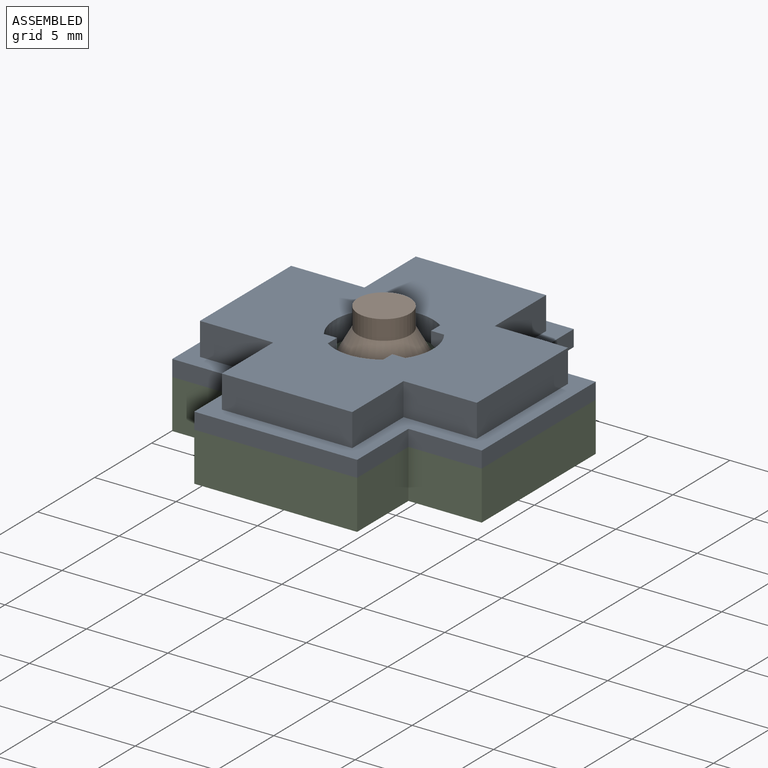
[diagram: assembled view]
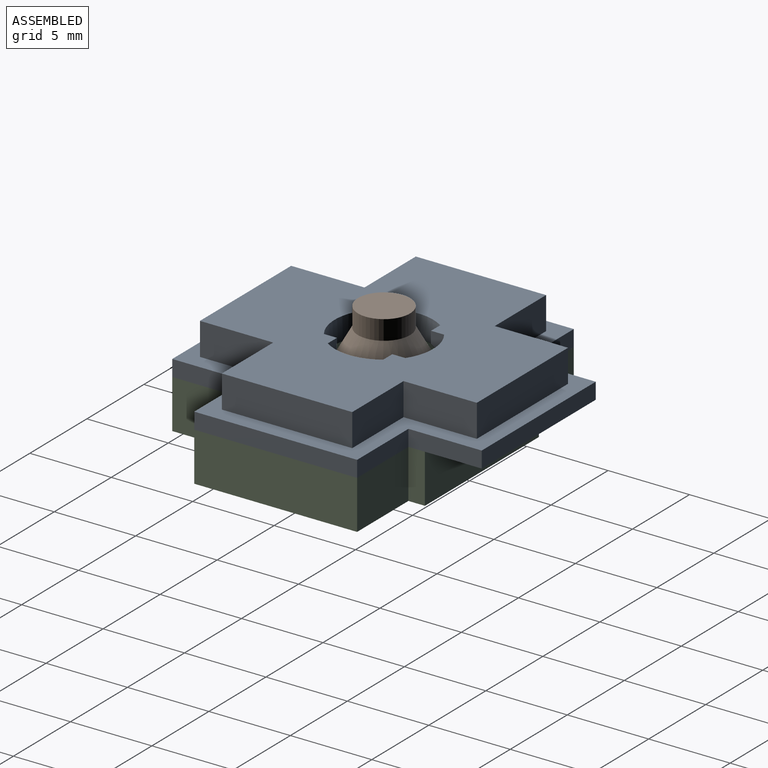
[diagram: assembled view, second angle]
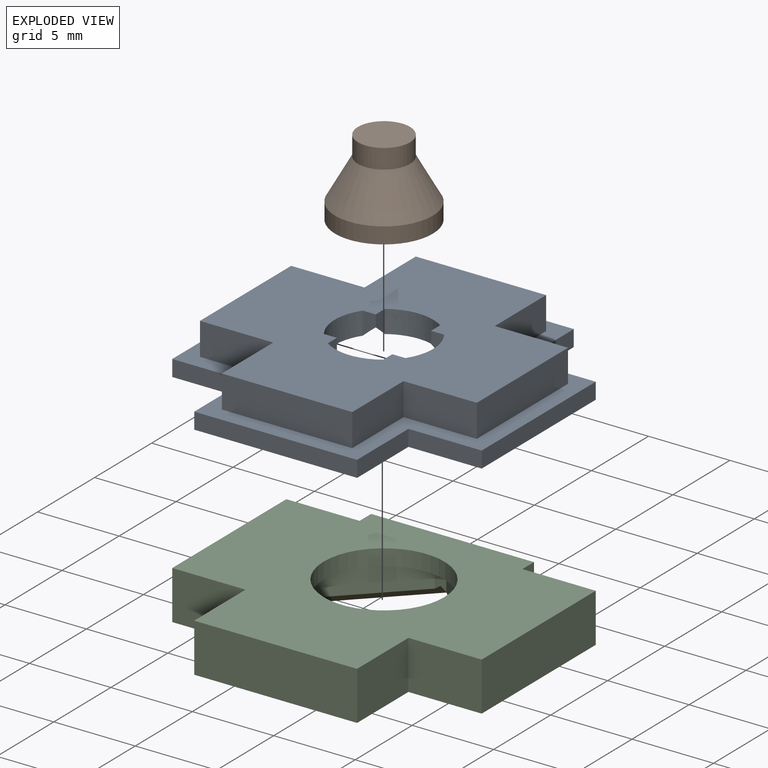
[diagram: exploded view]
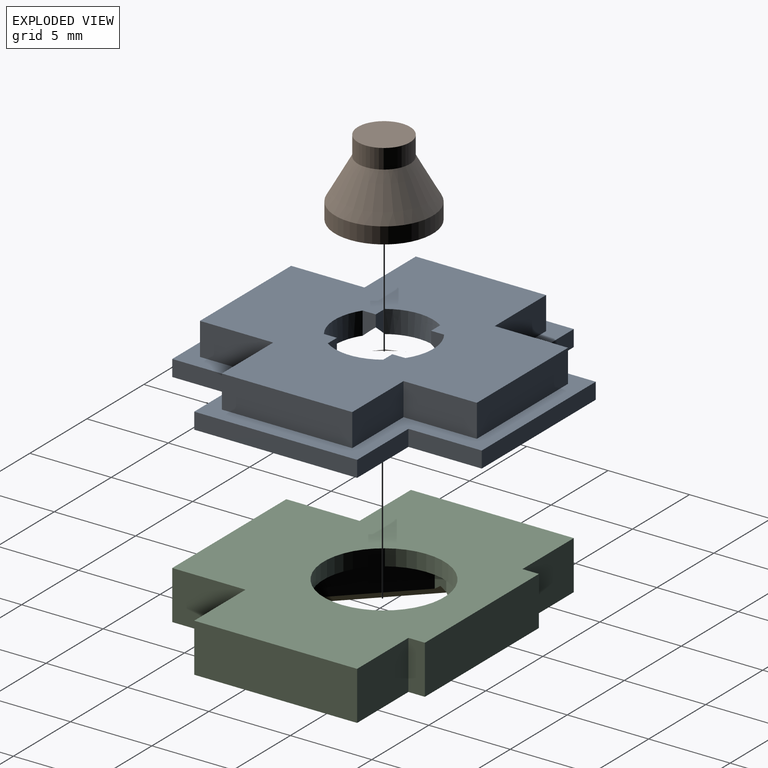
[diagram: exploded view, second angle]
ASSEMBLY  parts=3 mates=2
PART A: 40 faces, bbox 19.1x19.1x3.1 mm
  f0: plane 17x17mm, normal (0,0,1), area 180.7mm2, adj f2,f3,f4,f5,f6,f7,f8,f9
  f1: cone r=2.2mm half-angle=42.6deg, axis (0,0,-1), area 53.5mm2, adj f27,f28,f29,f30,f31,f32,f33,f34
  f2: plane 4.5x2mm, normal (0,-1,0), area 9mm2, adj f0,f3,f13,f26
  f3: plane 8x2mm, normal (1,0,0), area 16mm2, adj f0,f2,f4,f26
  f4: plane 4.5x2mm, normal (0,1,0), area 9mm2, adj f0,f3,f5,f26
  f5: plane 4.5x2mm, normal (1,0,0), area 9mm2, adj f0,f4,f6,f26
  f6: plane 8x2mm, normal (0,1,0), area 16mm2, adj f0,f5,f7,f26
  f7: plane 4.5x2mm, normal (-1,0,0), area 9mm2, adj f0,f6,f8,f26
  f8: plane 4.5x2mm, normal (0,1,0), area 9mm2, adj f0,f7,f9,f26
  f9: plane 8x2mm, normal (-1,0,0), area 16mm2, adj f0,f8,f10,f26
  f10: plane 4.5x2mm, normal (0,-1,0), area 9mm2, adj f0,f9,f11,f26
  f11: plane 4.5x2mm, normal (-1,0,0), area 9mm2, adj f0,f10,f12,f26
  f12: plane 8x2mm, normal (0,-1,0), area 16mm2, adj f0,f11,f13,f26
  f13: plane 4.5x2mm, normal (1,0,0), area 9mm2, adj f0,f2,f12,f26
  f14: plane 4.5x1mm, normal (0,-1,0), area 4.5mm2, adj f15,f25,f26,f27
  f15: plane 10x1mm, normal (1,0,0), area 10mm2, adj f14,f16,f26,f27
  f16: plane 4.5x1mm, normal (0,1,0), area 4.5mm2, adj f15,f17,f26,f27
  f17: plane 4.5x1mm, normal (1,0,0), area 4.5mm2, adj f16,f18,f26,f27
  f18: plane 10x1mm, normal (0,1,0), area 10mm2, adj f17,f19,f26,f27
  f19: plane 4.5x1mm, normal (-1,0,0), area 4.5mm2, adj f18,f20,f26,f27
  f20: plane 4.5x1mm, normal (0,1,0), area 4.5mm2, adj f19,f21,f26,f27
  f21: plane 10x1mm, normal (-1,0,0), area 10mm2, adj f20,f22,f26,f27
  f22: plane 4.5x1mm, normal (0,-1,0), area 4.5mm2, adj f21,f23,f26,f27
  f23: plane 4.5x1mm, normal (-1,0,0), area 4.5mm2, adj f22,f24,f26,f27
  f24: plane 10x1mm, normal (0,-1,0), area 10mm2, adj f23,f25,f26,f27
  f25: plane 4.5x1mm, normal (1,0,0), area 4.5mm2, adj f14,f24,f26,f27
  f26: plane 19x19mm, normal (0,0,1), area 72mm2, adj f2,f3,f4,f5,f6,f7,f8,f9
  f27: plane 19x19mm, normal (0,0,-1), area 216.4mm2, adj f1,f14,f15,f16,f17,f18,f19,f20
  f28: plane 1.46x0.87mm, normal (-1,0,0), area 0.8mm2, adj f0,f1,f29,f39
  f29: cylinder r=3mm len=3.4mm, axis (0,0,1), area 5mm2, adj f0,f1,f28,f30
  f30: plane 1.46x0.87mm, normal (1,0,0), area 0.8mm2, adj f0,f1,f29,f31
  f31: plane 1.46x0.87mm, normal (0,-1,0), area 0.8mm2, adj f0,f1,f30,f32
  f32: cylinder r=3mm len=3.4mm, axis (0,0,1), area 5mm2, adj f0,f1,f31,f33
  f33: plane 1.46x0.87mm, normal (0,1,0), area 0.8mm2, adj f0,f1,f32,f34
  f34: plane 1.46x0.87mm, normal (1,0,0), area 0.8mm2, adj f0,f1,f33,f35
  f35: cylinder r=3mm len=3.4mm, axis (0,0,1), area 5mm2, adj f0,f1,f34,f36
  f36: plane 1.46x0.87mm, normal (-1,0,0), area 0.8mm2, adj f0,f1,f35,f37
  f37: plane 1.46x0.87mm, normal (0,1,0), area 0.8mm2, adj f0,f1,f36,f38
  f38: cylinder r=3mm len=3.4mm, axis (0,0,1), area 5mm2, adj f0,f1,f37,f39
  f39: plane 1.46x0.87mm, normal (0,-1,0), area 0.8mm2, adj f0,f1,f28,f38
PART B: 10 faces, bbox 6x6x4.7 mm
  f0: cylinder r=3mm len=6mm, axis (0,0,-1), area 18.8mm2, adj f1,f2
  f1: plane 6x6mm, normal (0,0,-1), area 23.4mm2, adj f0,f5,f6,f7,f8
  f2: cone r=3mm half-angle=29.2deg, axis (0,0,-1), area 41.4mm2, adj f0,f3
  f3: cylinder r=1.6mm len=3.2mm, axis (0,0,1), area 12.1mm2, adj f2,f4
  f4: plane 3.2x3.2mm, normal (0,0,1), area 8mm2, adj f3
  f5: plane 2.5x2.2mm, normal (0,-1,0), area 5.5mm2, adj f1,f6,f8,f9
  f6: plane 2.5x2.2mm, normal (1,0,0), area 5.5mm2, adj f1,f5,f7,f9
  f7: plane 2.5x2.2mm, normal (0,1,0), area 5.5mm2, adj f1,f6,f8,f9
  f8: plane 2.5x2.2mm, normal (-1,0,0), area 5.5mm2, adj f1,f5,f7,f9
  f9: plane 2.2x2.2mm, normal (0,0,-1), area 4.8mm2, adj f5,f6,f7,f8
PART C: 28 faces, bbox 19x15.5x3 mm
  f0: plane 19x15.51mm, normal (0,0,1), area 172.9mm2, adj f1,f2,f5,f6,f7,f8,f9,f10
  f1: plane 3x1.01mm, normal (1,0,0), area 3mm2, adj f0,f3,f7,f27
  f2: plane 3x1.01mm, normal (-1,0,0), area 3mm2, adj f0,f3,f8,f27
  f3: plane 19x15.51mm, normal (0,0,-1), area 202.1mm2, adj f1,f2,f4,f5,f6,f7,f8,f9
  f4: cylinder r=3.7mm len=7.4mm, axis (0,0,-1), area 23.2mm2, adj f3,f18
  f5: plane 4.5x3mm, normal (0,-1,0), area 13.5mm2, adj f0,f3,f6,f13
  f6: plane 10x3mm, normal (1,0,0), area 30mm2, adj f0,f3,f5,f7
  f7: plane 4.5x3mm, normal (0,1,0), area 13.5mm2, adj f0,f1,f3,f6
  f8: plane 4.5x3mm, normal (0,1,0), area 13.5mm2, adj f0,f2,f3,f9
  f9: plane 10x3mm, normal (-1,0,0), area 30mm2, adj f0,f3,f8,f10
  f10: plane 4.5x3mm, normal (0,-1,0), area 13.5mm2, adj f0,f3,f9,f11
  f11: plane 4.5x3mm, normal (-1,0,0), area 13.5mm2, adj f0,f3,f10,f12
  f12: plane 10x3mm, normal (0,-1,0), area 30mm2, adj f0,f3,f11,f13
  f13: plane 4.5x3mm, normal (1,0,0), area 13.5mm2, adj f0,f3,f5,f12
  f14: plane 4.6x4.6mm, normal (-0.71,0.71,0), area 9.7mm2, adj f18,f21,f23,f24
  f15: plane 4.6x4.6mm, normal (-0.71,-0.71,0), area 9.7mm2, adj f18,f19,f23,f26
  f16: plane 4.6x4.6mm, normal (0.71,-0.71,0), area 9.8mm2, adj f18,f20,f25,f26
  f17: plane 4.6x4.6mm, normal (0.71,0.71,0), area 9.8mm2, adj f18,f22,f24,f25
  f18: plane 9.9x9.9mm, normal (0,0,1), area 12.7mm2, adj f4,f14,f15,f16,f17,f23,f24,f25
  f19: plane 6.01x6.01mm, normal (-0.5,-0.5,0.71), area 5.8mm2, adj f0,f15,f20,f21,f23,f26
  f20: plane 6.01x6.01mm, normal (0.5,-0.5,0.71), area 5.8mm2, adj f0,f16,f19,f22,f25,f26
  f21: plane 6.01x6.01mm, normal (-0.5,0.5,0.71), area 5.8mm2, adj f0,f14,f19,f22,f23,f24
  f22: plane 6.01x6.01mm, normal (0.5,0.5,0.71), area 5.8mm2, adj f0,f17,f20,f21,f24,f25
  f23: plane 1.5x0.71mm, normal (-1,0,0), area 1mm2, adj f14,f15,f18,f19,f21
  f24: plane 1.5x0.71mm, normal (0,1,0), area 1mm2, adj f14,f17,f18,f21,f22
  f25: plane 1.5x0.71mm, normal (1,0,0), area 1mm2, adj f16,f17,f18,f20,f22
  f26: plane 1.5x0.71mm, normal (0,-1,0), area 1mm2, adj f15,f16,f18,f19,f20
  f27: plane 10x3mm, normal (0,1,0), area 30mm2, adj f0,f1,f2,f3
PLACE A t=(-45.46,-34.42,-0.54)mm
PLACE B rot(axis=(-0.98,-0.11,0.19),0deg) t=(-1.82,-32.49,-0.65)mm
PLACE C rot(axis=(0,1,0),180deg) t=(10.82,-34.42,-0.54)mm
MATE fastened A.f1 <-> C.f4  axis (0,0,-1) through (-1.92,-32.59,-0.54)mm
MATE slider A.f1 <-> B.f2  axis (0,0,1) through (-1.92,-32.59,2.46)mm
